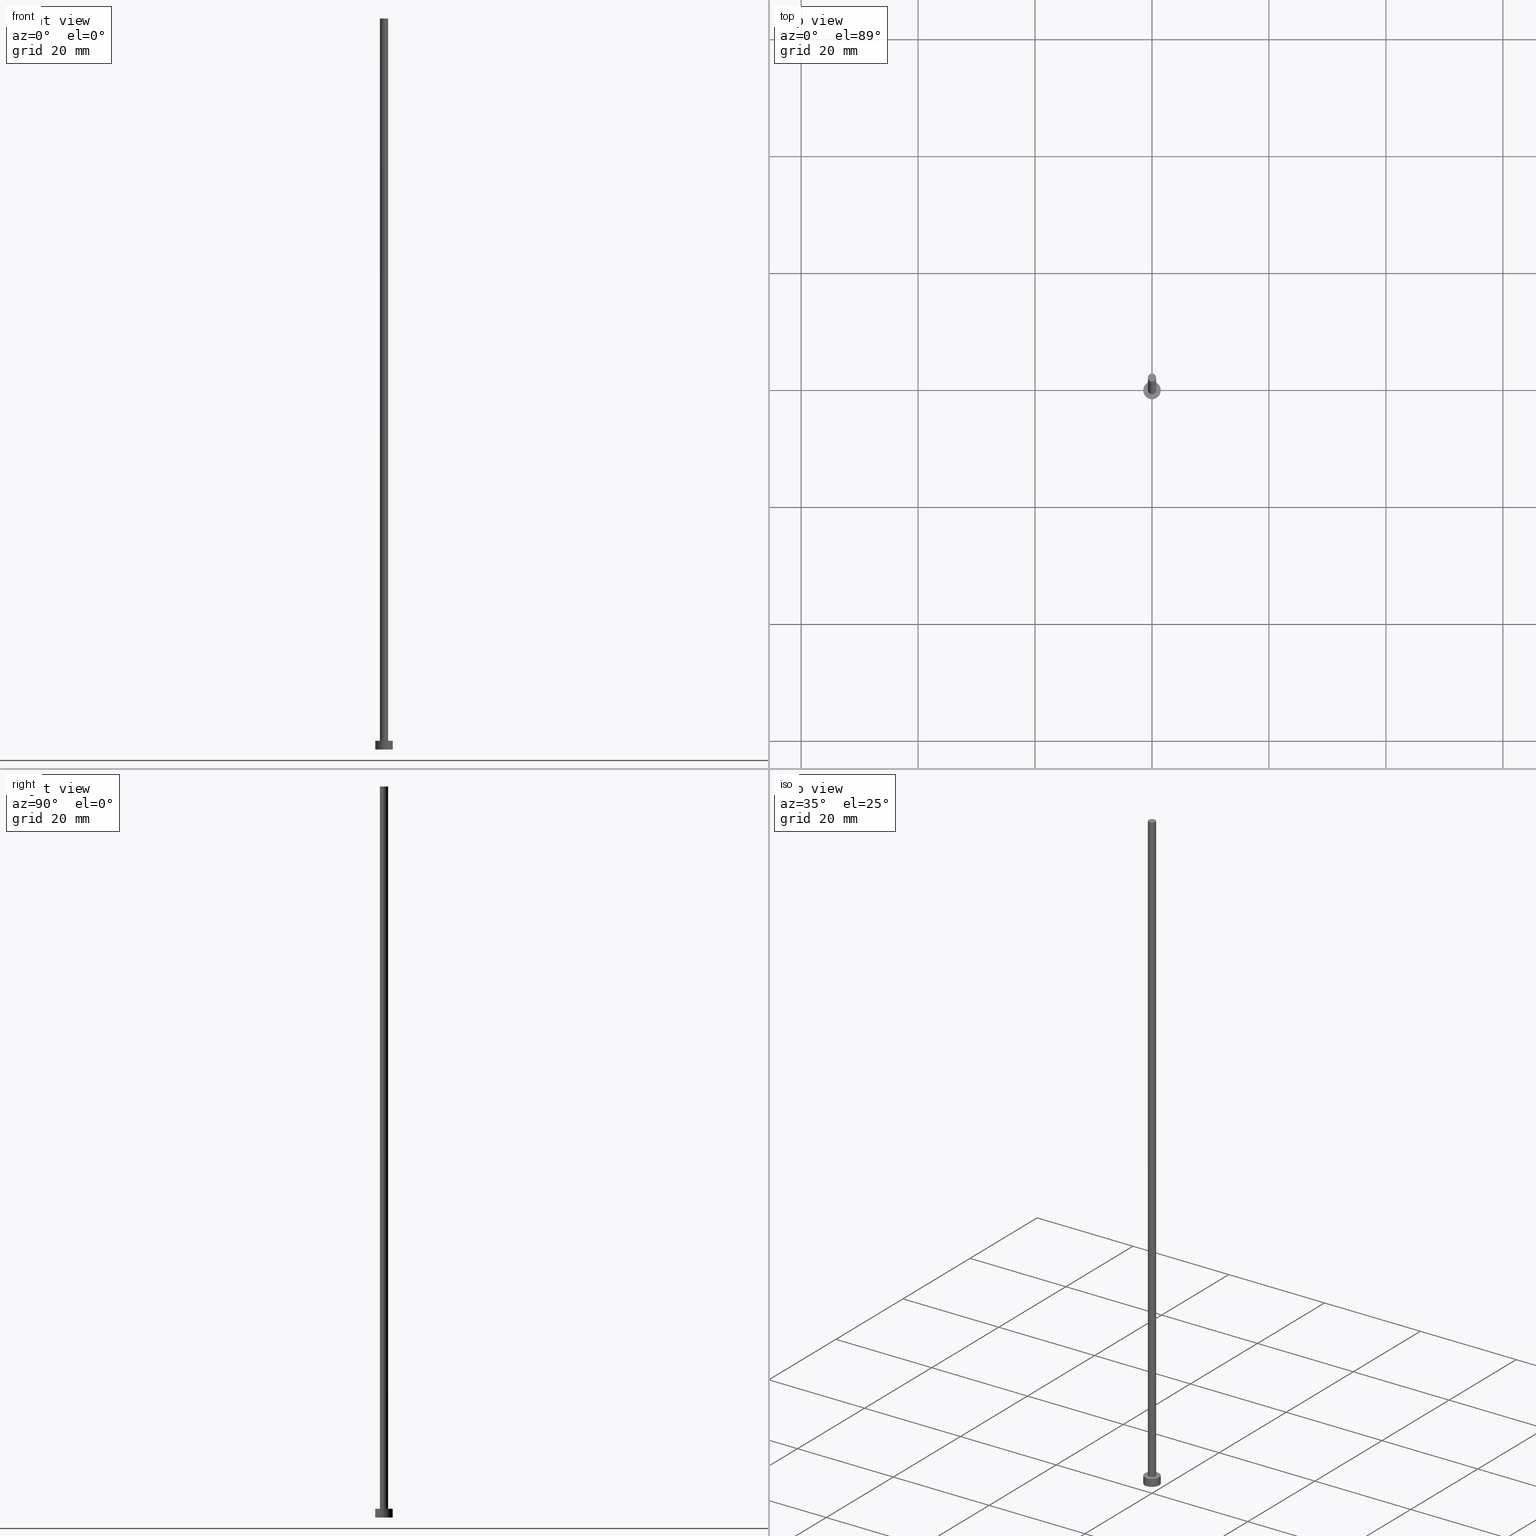
[diagram: canonical four-view strip — front | top / right | iso, engineering-drawing reading convention]
A machine part, canonical four-view strip (front | top / right | iso — engineering-drawing reading convention). The complete STEP part file that produces these views, byte-faithful:
ISO-10303-21;
HEADER;
FILE_DESCRIPTION (( 'STEP AP203' ),
    '1' );
FILE_NAME ('6a19.STEP',
    '2023-02-13T17:25:39',
    ( '' ),
    ( '' ),
    'SwSTEP 2.0',
    'SolidWorks 2019',
    '' );
FILE_SCHEMA (( 'CONFIG_CONTROL_DESIGN' ));
ENDSEC;

DATA;
#1 = PRODUCT_DEFINITION_SHAPE ( 'NONE', 'NONE',  #218 ) ;
#2 = VERTEX_POINT ( 'NONE', #9 ) ;
#3 = EDGE_CURVE ( 'NONE', #18, #217, #63, .T. ) ;
#4 = AXIS2_PLACEMENT_3D ( 'NONE', #251, #173, #254 ) ;
#5 = EDGE_CURVE ( 'NONE', #131, #18, #194, .T. ) ;
#6 = CC_DESIGN_DATE_AND_TIME_ASSIGNMENT ( #54, #29, ( #218 ) ) ;
#7 = AXIS2_PLACEMENT_3D ( 'NONE', #90, #65, #225 ) ;
#8 = DIRECTION ( 'NONE',  ( -0.000000000000000000, -0.000000000000000000, -1.000000000000000000 ) ) ;
#9 = CARTESIAN_POINT ( 'NONE',  ( 1.500000000000000222, 1.836970198721030181E-16, 0.000000000000000000 ) ) ;
#10 = ORIENTED_EDGE ( 'NONE', *, *, #117, .F. ) ;
#11 = PERSON_AND_ORGANIZATION_ROLE ( 'design_supplier' ) ;
#12 = ORIENTED_EDGE ( 'NONE', *, *, #47, .F. ) ;
#13 = DIRECTION ( 'NONE',  ( 0.000000000000000000, 0.000000000000000000, 1.000000000000000000 ) ) ;
#14 = PERSON_AND_ORGANIZATION_ROLE ( 'creator' ) ;
#15 = VECTOR ( 'NONE', #80, 1000.000000000000000 ) ;
#16 = CARTESIAN_POINT ( 'NONE',  ( 0.000000000000000000, 0.000000000000000000, 0.000000000000000000 ) ) ;
#17 = CIRCLE ( 'NONE', #61, 0.6999999999999999556 ) ;
#18 = VERTEX_POINT ( 'NONE', #136 ) ;
#19 = AXIS2_PLACEMENT_3D ( 'NONE', #236, #239, #98 ) ;
#20 = LOCAL_TIME ( 18, 25, 39.00000000000000000, #191 ) ;
#21 = EDGE_CURVE ( 'NONE', #38, #2, #56, .T. ) ;
#22 = ORIENTED_EDGE ( 'NONE', *, *, #21, .T. ) ;
#23 = APPROVAL_PERSON_ORGANIZATION ( #247, #103, #71 ) ;
#24 = EDGE_LOOP ( 'NONE', ( #85, #161 ) ) ;
#25 = PERSON_AND_ORGANIZATION ( #235, #52 ) ;
#26 = DIRECTION ( 'NONE',  ( 0.000000000000000000, 0.000000000000000000, 1.000000000000000000 ) ) ;
#27 = DIRECTION ( 'NONE',  ( 1.000000000000000000, 0.000000000000000000, 0.000000000000000000 ) ) ;
#28 = EDGE_CURVE ( 'NONE', #2, #38, #150, .T. ) ;
#29 = DATE_TIME_ROLE ( 'creation_date' ) ;
#30 = DIRECTION ( 'NONE',  ( -1.000000000000000000, 0.000000000000000000, 0.000000000000000000 ) ) ;
#31 = DIRECTION ( 'NONE',  ( 1.000000000000000000, 0.000000000000000000, 0.000000000000000000 ) ) ;
#32 = CALENDAR_DATE ( 2023, 13, 2 ) ;
#33 =( GEOMETRIC_REPRESENTATION_CONTEXT ( 3 ) GLOBAL_UNCERTAINTY_ASSIGNED_CONTEXT ( ( #188 ) ) GLOBAL_UNIT_ASSIGNED_CONTEXT ( ( #120, #57, #211 ) ) REPRESENTATION_CONTEXT ( 'NONE', 'WORKASPACE' ) );
#34 = CARTESIAN_POINT ( 'NONE',  ( 0.000000000000000000, 0.000000000000000000, 1.500000000000000000 ) ) ;
#35 = CIRCLE ( 'NONE', #237, 0.6999999999999999556 ) ;
#36 = APPROVAL_DATE_TIME ( #94, #205 ) ;
#37 = ORIENTED_EDGE ( 'NONE', *, *, #28, .T. ) ;
#38 = VERTEX_POINT ( 'NONE', #77 ) ;
#39 = ADVANCED_FACE ( 'NONE', ( #145 ), #157, .T. ) ;
#40 = ORIENTED_EDGE ( 'NONE', *, *, #5, .F. ) ;
#41 = AXIS2_PLACEMENT_3D ( 'NONE', #139, #210, #30 ) ;
#42 = CC_DESIGN_DATE_AND_TIME_ASSIGNMENT ( #183, #152, ( #222 ) ) ;
#43 = DIRECTION ( 'NONE',  ( 1.000000000000000000, 0.000000000000000000, -0.000000000000000000 ) ) ;
#44 = ORIENTED_EDGE ( 'NONE', *, *, #162, .T. ) ;
#45 = APPLICATION_CONTEXT ( 'configuration controlled 3d designs of mechanical parts and assemblies' ) ;
#46 = ORIENTED_EDGE ( 'NONE', *, *, #244, .F. ) ;
#47 = EDGE_CURVE ( 'NONE', #86, #217, #172, .T. ) ;
#48 = DIRECTION ( 'NONE',  ( -1.000000000000000000, 0.000000000000000000, 0.000000000000000000 ) ) ;
#49 = DIRECTION ( 'NONE',  ( 1.000000000000000000, 0.000000000000000000, 0.000000000000000000 ) ) ;
#50 = DIRECTION ( 'NONE',  ( 0.000000000000000000, 0.000000000000000000, 1.000000000000000000 ) ) ;
#51 = DESIGN_CONTEXT ( 'detailed design', #45, 'design' ) ;
#52 = ORGANIZATION ( 'NEUR�EN�', 'NEUR�EN�', '' ) ;
#53 = LOCAL_TIME ( 18, 25, 39.00000000000000000, #66 ) ;
#54 = DATE_AND_TIME ( #110, #143 ) ;
#55 = PERSON_AND_ORGANIZATION ( #235, #52 ) ;
#56 = CIRCLE ( 'NONE', #134, 1.500000000000000222 ) ;
#57 =( NAMED_UNIT ( * ) PLANE_ANGLE_UNIT ( ) SI_UNIT ( $, .RADIAN. ) );
#58 = LOCAL_TIME ( 18, 25, 39.00000000000000000, #229 ) ;
#59 = ADVANCED_FACE ( 'NONE', ( #123 ), #246, .T. ) ;
#60 = ORIENTED_EDGE ( 'NONE', *, *, #244, .T. ) ;
#61 = AXIS2_PLACEMENT_3D ( 'NONE', #34, #13, #31 ) ;
#62 = ORIENTED_EDGE ( 'NONE', *, *, #117, .T. ) ;
#63 = CIRCLE ( 'NONE', #181, 0.6999999999999999556 ) ;
#64 = FACE_OUTER_BOUND ( 'NONE', #147, .T. ) ;
#65 = DIRECTION ( 'NONE',  ( -0.000000000000000000, -0.000000000000000000, -1.000000000000000000 ) ) ;
#66 = COORDINATED_UNIVERSAL_TIME_OFFSET ( 1, 0, .AHEAD. ) ;
#67 = CARTESIAN_POINT ( 'NONE',  ( 1.500000000000000222, 1.836970198721030181E-16, 1.500000000000000000 ) ) ;
#68 = CARTESIAN_POINT ( 'NONE',  ( 0.000000000000000000, 0.000000000000000000, 1.500000000000000000 ) ) ;
#69 = APPROVAL_STATUS ( 'not_yet_approved' ) ;
#70 = APPROVAL_ROLE ( '' ) ;
#71 = APPROVAL_ROLE ( '' ) ;
#72 = DIRECTION ( 'NONE',  ( 1.000000000000000000, 0.000000000000000000, 0.000000000000000000 ) ) ;
#73 = CALENDAR_DATE ( 2023, 13, 2 ) ;
#74 = PERSON_AND_ORGANIZATION ( #235, #52 ) ;
#75 = EDGE_CURVE ( 'NONE', #131, #86, #83, .T. ) ;
#76 = PERSON_AND_ORGANIZATION ( #235, #52 ) ;
#77 = CARTESIAN_POINT ( 'NONE',  ( -1.500000000000000222, 0.000000000000000000, 0.000000000000000000 ) ) ;
#78 = CARTESIAN_POINT ( 'NONE',  ( -0.6999999999999999556, 0.000000000000000000, 125.0000000000000000 ) ) ;
#79 = AXIS2_PLACEMENT_3D ( 'NONE', #102, #214, #43 ) ;
#80 = DIRECTION ( 'NONE',  ( -0.000000000000000000, -0.000000000000000000, -1.000000000000000000 ) ) ;
#81 = DIRECTION ( 'NONE',  ( 0.000000000000000000, 0.000000000000000000, 1.000000000000000000 ) ) ;
#82 = ORIENTED_EDGE ( 'NONE', *, *, #75, .T. ) ;
#83 = CIRCLE ( 'NONE', #175, 0.6999999999999999556 ) ;
#84 = CC_DESIGN_APPROVAL ( #103, ( #135 ) ) ;
#85 = ORIENTED_EDGE ( 'NONE', *, *, #3, .F. ) ;
#86 = VERTEX_POINT ( 'NONE', #190 ) ;
#87 = CLOSED_SHELL ( 'NONE', ( #39, #101, #59, #126, #204, #216, #177 ) ) ;
#88 = CARTESIAN_POINT ( 'NONE',  ( 1.500000000000000222, 1.836970198721030181E-16, 1.500000000000000000 ) ) ;
#89 = PERSON_AND_ORGANIZATION_ROLE ( 'design_owner' ) ;
#90 = CARTESIAN_POINT ( 'NONE',  ( 0.000000000000000000, 0.000000000000000000, 1.500000000000000000 ) ) ;
#91 = PRODUCT_RELATED_PRODUCT_CATEGORY ( 'detail', '', ( #238 ) ) ;
#92 = CARTESIAN_POINT ( 'NONE',  ( 0.000000000000000000, 0.000000000000000000, 0.000000000000000000 ) ) ;
#93 = APPLICATION_PROTOCOL_DEFINITION ( 'international standard', 'config_control_design', 1994, #234 ) ;
#94 = DATE_AND_TIME ( #73, #58 ) ;
#95 = DIRECTION ( 'NONE',  ( -0.000000000000000000, -0.000000000000000000, -1.000000000000000000 ) ) ;
#96 = EDGE_CURVE ( 'NONE', #217, #18, #17, .T. ) ;
#97 = FACE_OUTER_BOUND ( 'NONE', #178, .T. ) ;
#98 = DIRECTION ( 'NONE',  ( 1.000000000000000000, 0.000000000000000000, -0.000000000000000000 ) ) ;
#99 = PLANE ( 'NONE',  #79 ) ;
#100 = ORIENTED_EDGE ( 'NONE', *, *, #96, .T. ) ;
#101 = ADVANCED_FACE ( 'NONE', ( #118 ), #252, .T. ) ;
#102 = CARTESIAN_POINT ( 'NONE',  ( 0.000000000000000000, 0.000000000000000000, 125.0000000000000000 ) ) ;
#103 = APPROVAL ( #209, 'NEUR�EN�' ) ;
#104 = ORIENTED_EDGE ( 'NONE', *, *, #47, .T. ) ;
#105 = VECTOR ( 'NONE', #228, 1000.000000000000000 ) ;
#106 = MECHANICAL_CONTEXT ( 'NONE', #234, 'mechanical' ) ;
#107 = ORIENTED_EDGE ( 'NONE', *, *, #75, .F. ) ;
#108 = ORIENTED_EDGE ( 'NONE', *, *, #5, .T. ) ;
#109 = DIRECTION ( 'NONE',  ( -1.000000000000000000, 0.000000000000000000, 0.000000000000000000 ) ) ;
#110 = CALENDAR_DATE ( 2023, 13, 2 ) ;
#111 = ORIENTED_EDGE ( 'NONE', *, *, #21, .F. ) ;
#112 = CARTESIAN_POINT ( 'NONE',  ( 0.6999999999999999556, 8.572527594031471957E-17, 1.500000000000000000 ) ) ;
#113 = FACE_BOUND ( 'NONE', #24, .T. ) ;
#114 = CARTESIAN_POINT ( 'NONE',  ( 0.000000000000000000, 0.000000000000000000, 0.000000000000000000 ) ) ;
#115 = CARTESIAN_POINT ( 'NONE',  ( 0.6999999999999999556, 8.572527594031471957E-17, 125.0000000000000000 ) ) ;
#116 = CARTESIAN_POINT ( 'NONE',  ( -0.6999999999999999556, 0.000000000000000000, 125.0000000000000000 ) ) ;
#117 = EDGE_CURVE ( 'NONE', #243, #223, #160, .T. ) ;
#118 = FACE_OUTER_BOUND ( 'NONE', #240, .T. ) ;
#119 = DIRECTION ( 'NONE',  ( 1.000000000000000000, 0.000000000000000000, 0.000000000000000000 ) ) ;
#120 =( LENGTH_UNIT ( ) NAMED_UNIT ( * ) SI_UNIT ( .MILLI., .METRE. ) );
#121 = SHAPE_DEFINITION_REPRESENTATION ( #1, #212 ) ;
#122 = EDGE_CURVE ( 'NONE', #223, #243, #206, .T. ) ;
#123 = FACE_OUTER_BOUND ( 'NONE', #197, .T. ) ;
#124 = CARTESIAN_POINT ( 'NONE',  ( 0.000000000000000000, 0.000000000000000000, 125.0000000000000000 ) ) ;
#125 = CYLINDRICAL_SURFACE ( 'NONE', #129, 0.6999999999999999556 ) ;
#126 = ADVANCED_FACE ( 'NONE', ( #113, #187 ), #248, .T. ) ;
#127 = ORIENTED_EDGE ( 'NONE', *, *, #122, .F. ) ;
#128 = ORIENTED_EDGE ( 'NONE', *, *, #3, .T. ) ;
#129 = AXIS2_PLACEMENT_3D ( 'NONE', #255, #8, #109 ) ;
#130 = CC_DESIGN_SECURITY_CLASSIFICATION ( #222, ( #135 ) ) ;
#131 = VERTEX_POINT ( 'NONE', #78 ) ;
#132 = CALENDAR_DATE ( 2023, 13, 2 ) ;
#133 = DIRECTION ( 'NONE',  ( 1.000000000000000000, 0.000000000000000000, 0.000000000000000000 ) ) ;
#134 = AXIS2_PLACEMENT_3D ( 'NONE', #92, #203, #72 ) ;
#135 = PRODUCT_DEFINITION_FORMATION_WITH_SPECIFIED_SOURCE ( 'LIBOVOLN�', '', #238, .NOT_KNOWN. ) ;
#136 = CARTESIAN_POINT ( 'NONE',  ( -0.6999999999999999556, 0.000000000000000000, 1.500000000000000000 ) ) ;
#137 = DIRECTION ( 'NONE',  ( 1.000000000000000000, 0.000000000000000000, -0.000000000000000000 ) ) ;
#138 = COORDINATED_UNIVERSAL_TIME_OFFSET ( 1, 0, .AHEAD. ) ;
#139 = CARTESIAN_POINT ( 'NONE',  ( 0.000000000000000000, 0.000000000000000000, 125.0000000000000000 ) ) ;
#140 = PERSON_AND_ORGANIZATION_ROLE ( 'creator' ) ;
#141 = DIRECTION ( 'NONE',  ( 0.000000000000000000, 0.000000000000000000, 1.000000000000000000 ) ) ;
#142 = LINE ( 'NONE', #233, #15 ) ;
#143 = LOCAL_TIME ( 18, 25, 39.00000000000000000, #138 ) ;
#144 = CC_DESIGN_PERSON_AND_ORGANIZATION_ASSIGNMENT ( #55, #241, ( #222 ) ) ;
#145 = FACE_OUTER_BOUND ( 'NONE', #163, .T. ) ;
#146 = AXIS2_PLACEMENT_3D ( 'NONE', #114, #50, #119 ) ;
#147 = EDGE_LOOP ( 'NONE', ( #111, #182 ) ) ;
#148 = EDGE_LOOP ( 'NONE', ( #62, #220 ) ) ;
#149 = DIRECTION ( 'NONE',  ( 0.000000000000000000, 0.000000000000000000, 1.000000000000000000 ) ) ;
#150 = CIRCLE ( 'NONE', #146, 1.500000000000000222 ) ;
#151 = DIRECTION ( 'NONE',  ( 0.000000000000000000, 0.000000000000000000, 1.000000000000000000 ) ) ;
#152 = DATE_TIME_ROLE ( 'classification_date' ) ;
#153 = DIRECTION ( 'NONE',  ( -0.000000000000000000, -0.000000000000000000, -1.000000000000000000 ) ) ;
#154 = AXIS2_PLACEMENT_3D ( 'NONE', #68, #227, #137 ) ;
#155 = CC_DESIGN_APPROVAL ( #205, ( #222 ) ) ;
#156 = DATE_AND_TIME ( #32, #53 ) ;
#157 = CYLINDRICAL_SURFACE ( 'NONE', #41, 0.6999999999999999556 ) ;
#158 = APPROVAL_DATE_TIME ( #166, #179 ) ;
#159 = MANIFOLD_SOLID_BREP ( 'P�idat vysunut�m3', #87 ) ;
#160 = CIRCLE ( 'NONE', #4, 1.500000000000000222 ) ;
#161 = ORIENTED_EDGE ( 'NONE', *, *, #96, .F. ) ;
#162 = EDGE_CURVE ( 'NONE', #86, #131, #35, .T. ) ;
#163 = EDGE_LOOP ( 'NONE', ( #185, #104, #100, #40 ) ) ;
#164 = ORIENTED_EDGE ( 'NONE', *, *, #221, .T. ) ;
#165 = AXIS2_PLACEMENT_3D ( 'NONE', #16, #149, #201 ) ;
#166 = DATE_AND_TIME ( #253, #20 ) ;
#167 = APPROVAL_STATUS ( 'not_yet_approved' ) ;
#168 = VECTOR ( 'NONE', #153, 1000.000000000000000 ) ;
#169 = APPROVAL_PERSON_ORGANIZATION ( #25, #205, #70 ) ;
#170 = LOCAL_TIME ( 18, 25, 39.00000000000000000, #180 ) ;
#171 = PERSON_AND_ORGANIZATION ( #235, #52 ) ;
#172 = LINE ( 'NONE', #115, #232 ) ;
#173 = DIRECTION ( 'NONE',  ( 0.000000000000000000, 0.000000000000000000, 1.000000000000000000 ) ) ;
#174 = APPLICATION_PROTOCOL_DEFINITION ( 'international standard', 'config_control_design', 1994, #45 ) ;
#175 = AXIS2_PLACEMENT_3D ( 'NONE', #207, #26, #133 ) ;
#176 = CC_DESIGN_PERSON_AND_ORGANIZATION_ASSIGNMENT ( #76, #14, ( #218 ) ) ;
#177 = ADVANCED_FACE ( 'NONE', ( #97 ), #99, .T. ) ;
#178 = EDGE_LOOP ( 'NONE', ( #82, #44 ) ) ;
#179 = APPROVAL ( #69, 'NEUR�EN�' ) ;
#180 = COORDINATED_UNIVERSAL_TIME_OFFSET ( 1, 0, .AHEAD. ) ;
#181 = AXIS2_PLACEMENT_3D ( 'NONE', #250, #141, #49 ) ;
#182 = ORIENTED_EDGE ( 'NONE', *, *, #28, .F. ) ;
#183 = DATE_AND_TIME ( #132, #170 ) ;
#184 = APPROVAL_DATE_TIME ( #156, #103 ) ;
#185 = ORIENTED_EDGE ( 'NONE', *, *, #162, .F. ) ;
#186 = LINE ( 'NONE', #88, #105 ) ;
#187 = FACE_OUTER_BOUND ( 'NONE', #148, .T. ) ;
#188 = UNCERTAINTY_MEASURE_WITH_UNIT (LENGTH_MEASURE( 1.000000000000000082E-05 ), #120, 'distance_accuracy_value', 'NONE');
#189 = CARTESIAN_POINT ( 'NONE',  ( -1.500000000000000222, 0.000000000000000000, 1.500000000000000000 ) ) ;
#190 = CARTESIAN_POINT ( 'NONE',  ( 0.6999999999999999556, 8.572527594031471957E-17, 125.0000000000000000 ) ) ;
#191 = COORDINATED_UNIVERSAL_TIME_OFFSET ( 1, 0, .AHEAD. ) ;
#192 = CARTESIAN_POINT ( 'NONE',  ( 0.000000000000000000, 0.000000000000000000, 1.500000000000000000 ) ) ;
#193 = SECURITY_CLASSIFICATION_LEVEL ( 'unclassified' ) ;
#194 = LINE ( 'NONE', #116, #168 ) ;
#195 = FACE_OUTER_BOUND ( 'NONE', #245, .T. ) ;
#196 = AXIS2_PLACEMENT_3D ( 'NONE', #192, #95, #48 ) ;
#197 = EDGE_LOOP ( 'NONE', ( #199, #10, #60, #22 ) ) ;
#198 = APPROVAL_PERSON_ORGANIZATION ( #231, #179, #249 ) ;
#199 = ORIENTED_EDGE ( 'NONE', *, *, #221, .F. ) ;
#200 = CC_DESIGN_APPROVAL ( #179, ( #218 ) ) ;
#201 = DIRECTION ( 'NONE',  ( 1.000000000000000000, 0.000000000000000000, 0.000000000000000000 ) ) ;
#202 = CARTESIAN_POINT ( 'NONE',  ( 0.000000000000000000, 0.000000000000000000, 1.500000000000000000 ) ) ;
#203 = DIRECTION ( 'NONE',  ( 0.000000000000000000, 0.000000000000000000, 1.000000000000000000 ) ) ;
#204 = ADVANCED_FACE ( 'NONE', ( #64 ), #208, .F. ) ;
#205 = APPROVAL ( #167, 'NEUR�EN�' ) ;
#206 = CIRCLE ( 'NONE', #226, 1.500000000000000222 ) ;
#207 = CARTESIAN_POINT ( 'NONE',  ( 0.000000000000000000, 0.000000000000000000, 125.0000000000000000 ) ) ;
#208 = PLANE ( 'NONE',  #19 ) ;
#209 = APPROVAL_STATUS ( 'not_yet_approved' ) ;
#210 = DIRECTION ( 'NONE',  ( -0.000000000000000000, -0.000000000000000000, -1.000000000000000000 ) ) ;
#211 =( NAMED_UNIT ( * ) SI_UNIT ( $, .STERADIAN. ) SOLID_ANGLE_UNIT ( ) );
#212 = ADVANCED_BREP_SHAPE_REPRESENTATION ( '6a19', ( #159, #165 ), #33 ) ;
#213 = CC_DESIGN_PERSON_AND_ORGANIZATION_ASSIGNMENT ( #74, #11, ( #135 ) ) ;
#214 = DIRECTION ( 'NONE',  ( 0.000000000000000000, 0.000000000000000000, 1.000000000000000000 ) ) ;
#215 = DIRECTION ( 'NONE',  ( 1.000000000000000000, 0.000000000000000000, 0.000000000000000000 ) ) ;
#216 = ADVANCED_FACE ( 'NONE', ( #195 ), #125, .T. ) ;
#217 = VERTEX_POINT ( 'NONE', #112 ) ;
#218 = PRODUCT_DEFINITION ( 'NEZN�M�', '', #135, #51 ) ;
#219 = DIRECTION ( 'NONE',  ( -0.000000000000000000, -0.000000000000000000, -1.000000000000000000 ) ) ;
#220 = ORIENTED_EDGE ( 'NONE', *, *, #122, .T. ) ;
#221 = EDGE_CURVE ( 'NONE', #223, #2, #186, .T. ) ;
#222 = SECURITY_CLASSIFICATION ( '', '', #193 ) ;
#223 = VERTEX_POINT ( 'NONE', #67 ) ;
#224 = CC_DESIGN_PERSON_AND_ORGANIZATION_ASSIGNMENT ( #230, #140, ( #135 ) ) ;
#225 = DIRECTION ( 'NONE',  ( -1.000000000000000000, 0.000000000000000000, 0.000000000000000000 ) ) ;
#226 = AXIS2_PLACEMENT_3D ( 'NONE', #202, #151, #27 ) ;
#227 = DIRECTION ( 'NONE',  ( 0.000000000000000000, 0.000000000000000000, 1.000000000000000000 ) ) ;
#228 = DIRECTION ( 'NONE',  ( -0.000000000000000000, -0.000000000000000000, -1.000000000000000000 ) ) ;
#229 = COORDINATED_UNIVERSAL_TIME_OFFSET ( 1, 0, .AHEAD. ) ;
#230 = PERSON_AND_ORGANIZATION ( #235, #52 ) ;
#231 = PERSON_AND_ORGANIZATION ( #235, #52 ) ;
#232 = VECTOR ( 'NONE', #219, 1000.000000000000000 ) ;
#233 = CARTESIAN_POINT ( 'NONE',  ( -1.500000000000000222, 0.000000000000000000, 1.500000000000000000 ) ) ;
#234 = APPLICATION_CONTEXT ( 'configuration controlled 3d designs of mechanical parts and assemblies' ) ;
#235 = PERSON ( 'NEUR�EN�', 'NEUR�EN�', 'NEUR�EN�', ('NEUR�EN�'), ('NEUR�EN�'), ('NEUR�EN�') ) ;
#236 = CARTESIAN_POINT ( 'NONE',  ( 0.000000000000000000, 0.000000000000000000, 0.000000000000000000 ) ) ;
#237 = AXIS2_PLACEMENT_3D ( 'NONE', #124, #81, #215 ) ;
#238 = PRODUCT ( '6a19', '6a19', '', ( #106 ) ) ;
#239 = DIRECTION ( 'NONE',  ( 0.000000000000000000, 0.000000000000000000, 1.000000000000000000 ) ) ;
#240 = EDGE_LOOP ( 'NONE', ( #127, #164, #37, #46 ) ) ;
#241 = PERSON_AND_ORGANIZATION_ROLE ( 'classification_officer' ) ;
#242 = CC_DESIGN_PERSON_AND_ORGANIZATION_ASSIGNMENT ( #171, #89, ( #238 ) ) ;
#243 = VERTEX_POINT ( 'NONE', #189 ) ;
#244 = EDGE_CURVE ( 'NONE', #243, #38, #142, .T. ) ;
#245 = EDGE_LOOP ( 'NONE', ( #12, #107, #108, #128 ) ) ;
#246 = CYLINDRICAL_SURFACE ( 'NONE', #7, 1.500000000000000222 ) ;
#247 = PERSON_AND_ORGANIZATION ( #235, #52 ) ;
#248 = PLANE ( 'NONE',  #154 ) ;
#249 = APPROVAL_ROLE ( '' ) ;
#250 = CARTESIAN_POINT ( 'NONE',  ( 0.000000000000000000, 0.000000000000000000, 1.500000000000000000 ) ) ;
#251 = CARTESIAN_POINT ( 'NONE',  ( 0.000000000000000000, 0.000000000000000000, 1.500000000000000000 ) ) ;
#252 = CYLINDRICAL_SURFACE ( 'NONE', #196, 1.500000000000000222 ) ;
#253 = CALENDAR_DATE ( 2023, 13, 2 ) ;
#254 = DIRECTION ( 'NONE',  ( 1.000000000000000000, 0.000000000000000000, 0.000000000000000000 ) ) ;
#255 = CARTESIAN_POINT ( 'NONE',  ( 0.000000000000000000, 0.000000000000000000, 125.0000000000000000 ) ) ;
ENDSEC;
END-ISO-10303-21;
